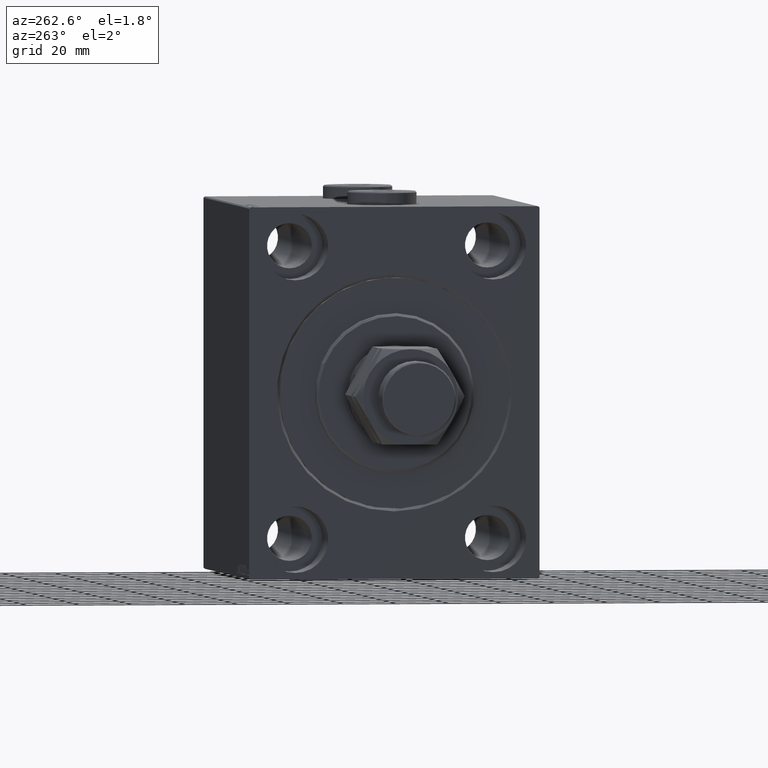
[diagram: clean part render]
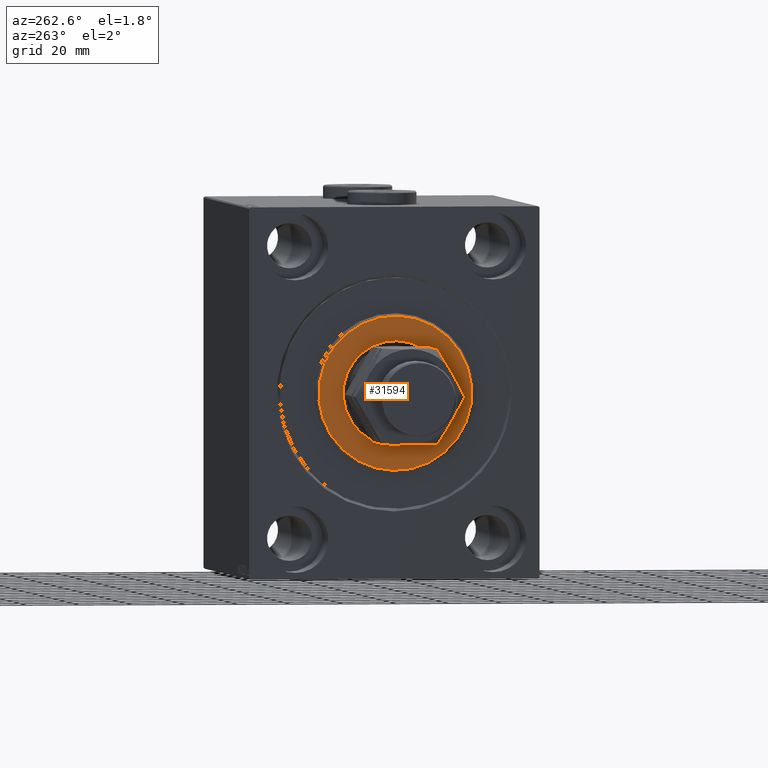
[diagram: same view with one face highlighted and labeled with its STEP entity id]
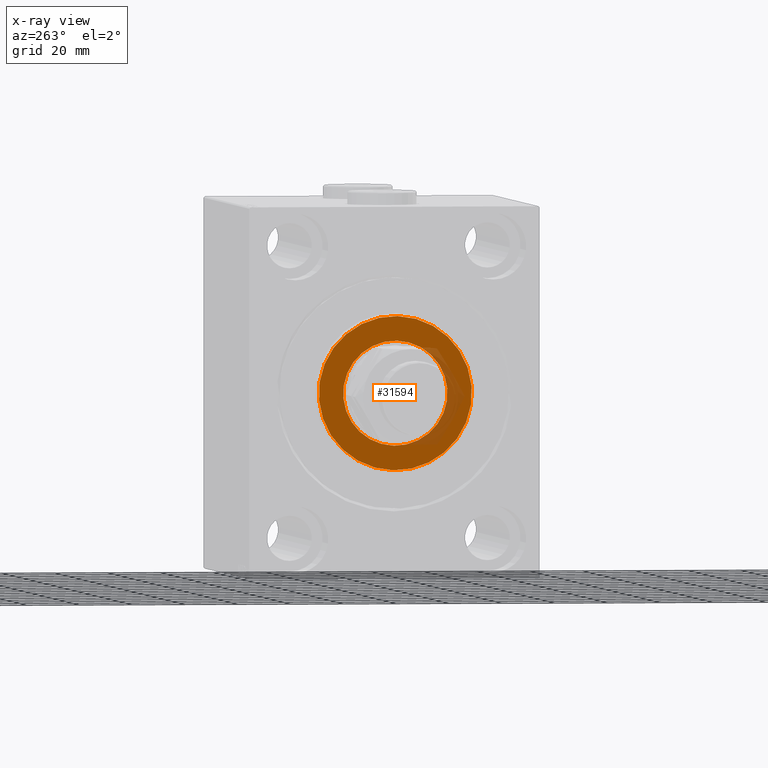
[diagram: x-ray of the same camera — body ghosted, the highlighted face saturated]
A machine part, auxiliary view. The second image highlights one B-rep face of the part: STEP entity #31594.
The next image is the same camera in x-ray: the body ghosted, the highlighted face saturated — about 13% of this face is hidden behind the body in this view.
In plain terms, the highlighted planar face has unit normal (-1, 0, 0).
Its self-contained STEP definition (entity closure, byte-faithful):
#809 = DIRECTION ( 'NONE',  ( 0.000000000000000000, 0.000000000000000000, -1.000000000000000000 ) ) ;
#1353 = CIRCLE ( 'NONE', #11218, 19.75000000000000000 ) ;
#2413 = CIRCLE ( 'NONE', #8486, 28.99999999999999289 ) ;
#5636 = DIRECTION ( 'NONE',  ( 0.000000000000000000, 0.000000000000000000, -1.000000000000000000 ) ) ;
#6137 = DIRECTION ( 'NONE',  ( 0.000000000000000000, 0.000000000000000000, -1.000000000000000000 ) ) ;
#7003 = AXIS2_PLACEMENT_3D ( 'NONE', #30169, #29289, #25730 ) ;
#8342 = ORIENTED_EDGE ( 'NONE', *, *, #21067, .T. ) ;
#8486 = AXIS2_PLACEMENT_3D ( 'NONE', #42771, #21355, #6137 ) ;
#9345 = EDGE_CURVE ( 'NONE', #26575, #12199, #18106, .T. ) ;
#11218 = AXIS2_PLACEMENT_3D ( 'NONE', #32705, #29821, #809 ) ;
#12199 = VERTEX_POINT ( 'NONE', #26874 ) ;
#12766 = PLANE ( 'NONE',  #40581 ) ;
#13403 = CARTESIAN_POINT ( 'NONE',  ( 3.000000000000000000, 0.000000000000000000, 28.99999999999999289 ) ) ;
#14425 = VERTEX_POINT ( 'NONE', #25857 ) ;
#15046 = AXIS2_PLACEMENT_3D ( 'NONE', #31974, #17910, #31735 ) ;
#17910 = DIRECTION ( 'NONE',  ( 1.000000000000000000, -0.000000000000000000, 0.000000000000000000 ) ) ;
#18106 = CIRCLE ( 'NONE', #15046, 28.99999999999999289 ) ;
#20195 = ORIENTED_EDGE ( 'NONE', *, *, #22843, .T. ) ;
#21067 = EDGE_CURVE ( 'NONE', #12199, #26575, #2413, .T. ) ;
#21355 = DIRECTION ( 'NONE',  ( 1.000000000000000000, -0.000000000000000000, 0.000000000000000000 ) ) ;
#22843 = EDGE_CURVE ( 'NONE', #14425, #33728, #38180, .T. ) ;
#25730 = DIRECTION ( 'NONE',  ( 0.000000000000000000, 0.000000000000000000, -1.000000000000000000 ) ) ;
#25857 = CARTESIAN_POINT ( 'NONE',  ( 3.000000000000000000, 2.418677428316022331E-15, -19.75000000000000000 ) ) ;
#26575 = VERTEX_POINT ( 'NONE', #13403 ) ;
#26874 = CARTESIAN_POINT ( 'NONE',  ( 3.000000000000000000, 3.612708057484691604E-15, -28.99999999999999289 ) ) ;
#27297 = CARTESIAN_POINT ( 'NONE',  ( 3.000000000000000000, 0.000000000000000000, 0.000000000000000000 ) ) ;
#29289 = DIRECTION ( 'NONE',  ( -1.000000000000000000, 0.000000000000000000, -0.000000000000000000 ) ) ;
#29821 = DIRECTION ( 'NONE',  ( -1.000000000000000000, 0.000000000000000000, -0.000000000000000000 ) ) ;
#30169 = CARTESIAN_POINT ( 'NONE',  ( 3.000000000000000000, 0.000000000000000000, 0.000000000000000000 ) ) ;
#30862 = FACE_BOUND ( 'NONE', #34629, .T. ) ;
#31594 = ADVANCED_FACE ( 'NONE', ( #45606, #30862 ), #12766, .T. ) ;
#31735 = DIRECTION ( 'NONE',  ( 0.000000000000000000, 0.000000000000000000, -1.000000000000000000 ) ) ;
#31974 = CARTESIAN_POINT ( 'NONE',  ( 3.000000000000000000, 0.000000000000000000, 0.000000000000000000 ) ) ;
#32705 = CARTESIAN_POINT ( 'NONE',  ( 3.000000000000000000, 0.000000000000000000, 0.000000000000000000 ) ) ;
#33728 = VERTEX_POINT ( 'NONE', #36755 ) ;
#34629 = EDGE_LOOP ( 'NONE', ( #38751, #20195 ) ) ;
#36755 = CARTESIAN_POINT ( 'NONE',  ( 3.000000000000000000, 0.000000000000000000, 19.75000000000000000 ) ) ;
#37802 = ORIENTED_EDGE ( 'NONE', *, *, #9345, .T. ) ;
#38180 = CIRCLE ( 'NONE', #7003, 19.75000000000000000 ) ;
#38751 = ORIENTED_EDGE ( 'NONE', *, *, #45636, .T. ) ;
#40199 = EDGE_LOOP ( 'NONE', ( #37802, #8342 ) ) ;
#40581 = AXIS2_PLACEMENT_3D ( 'NONE', #27297, #41802, #5636 ) ;
#41802 = DIRECTION ( 'NONE',  ( 1.000000000000000000, -0.000000000000000000, 0.000000000000000000 ) ) ;
#42771 = CARTESIAN_POINT ( 'NONE',  ( 3.000000000000000000, 0.000000000000000000, 0.000000000000000000 ) ) ;
#45606 = FACE_OUTER_BOUND ( 'NONE', #40199, .T. ) ;
#45636 = EDGE_CURVE ( 'NONE', #33728, #14425, #1353, .T. ) ;